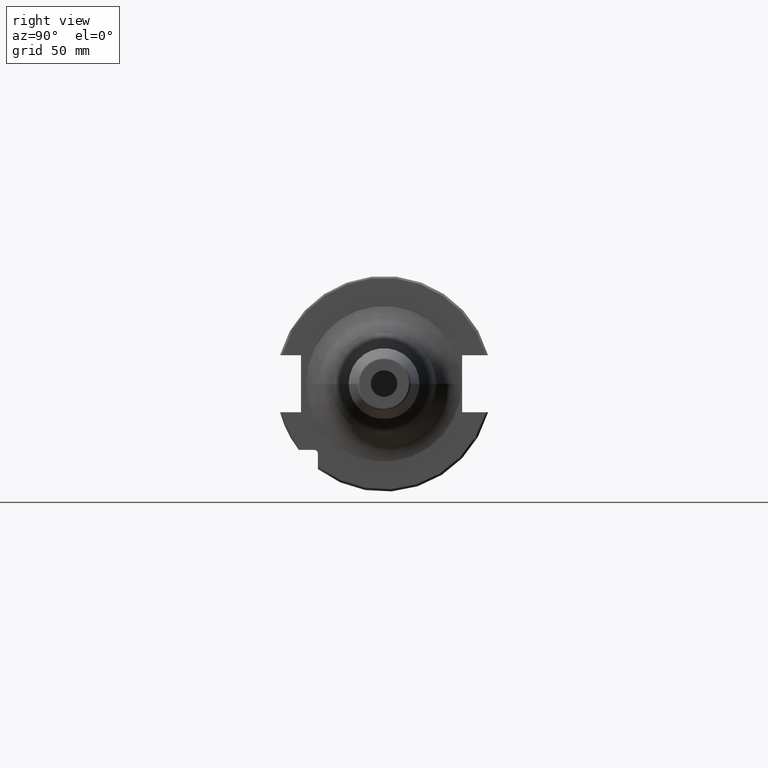
[diagram: clean part render]
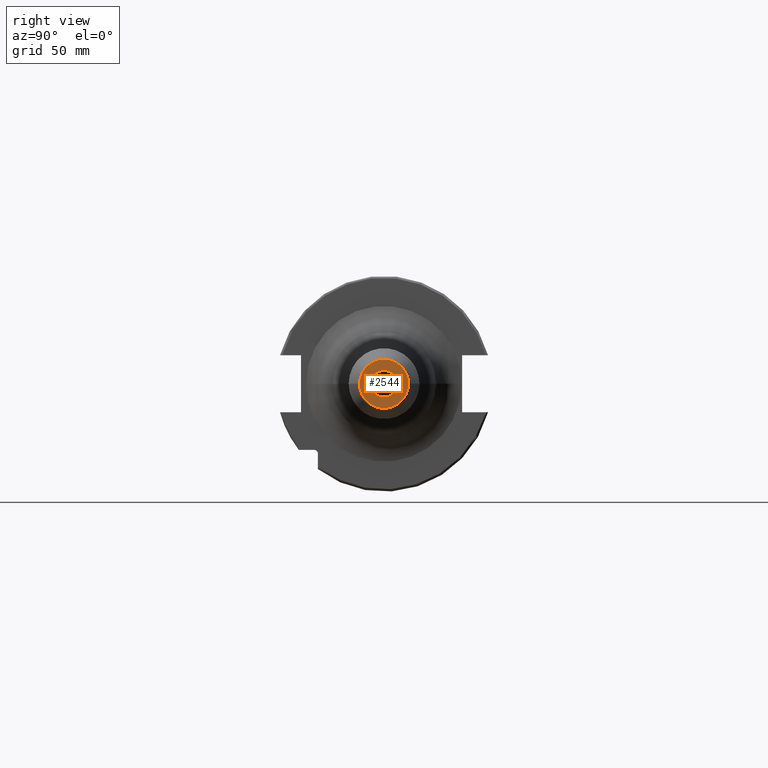
[diagram: same view with one face highlighted and labeled with its STEP entity id]
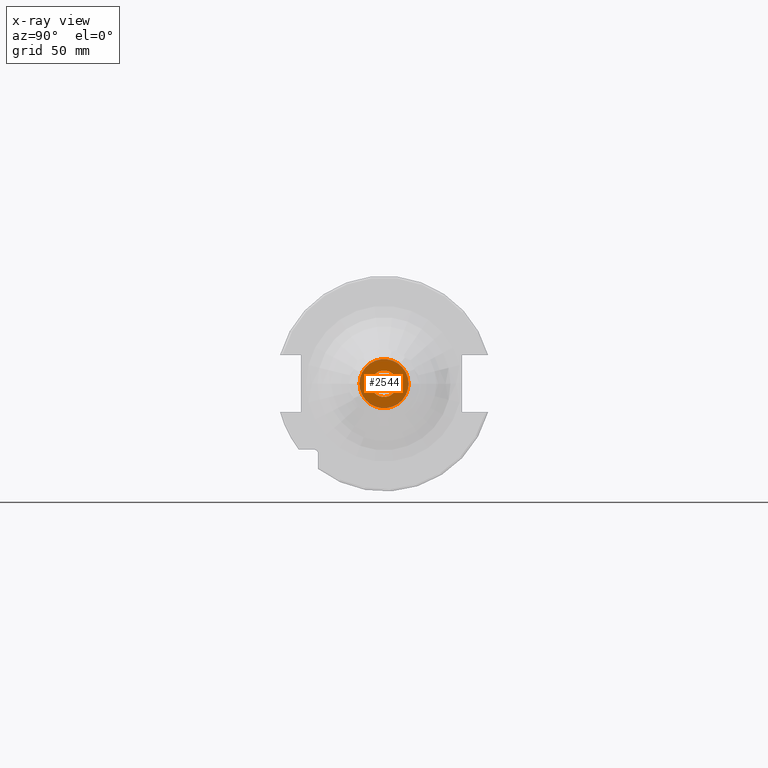
[diagram: x-ray of the same camera — body ghosted, the highlighted face saturated]
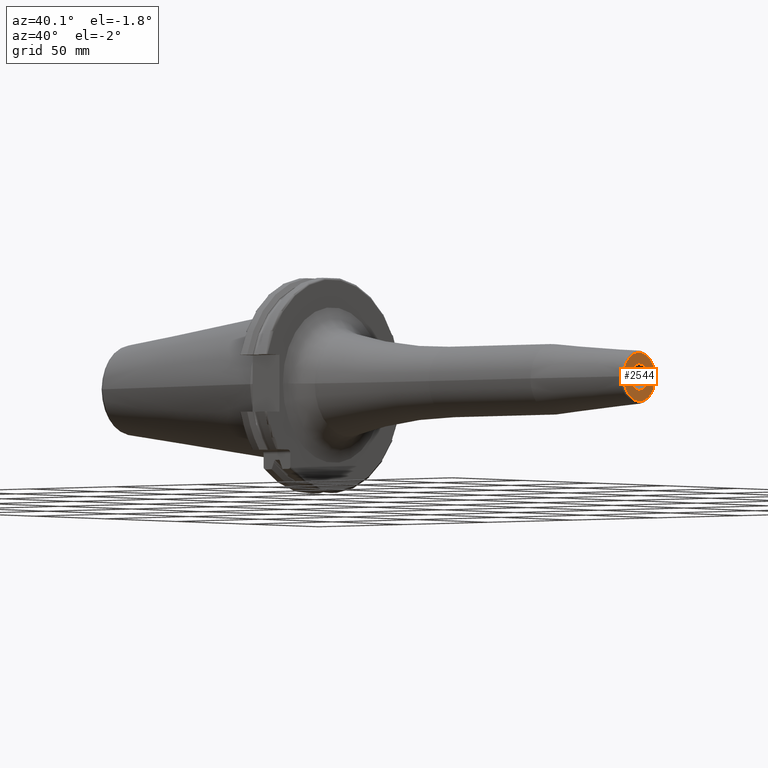
[diagram: same view with one face highlighted and labeled with its STEP entity id]
A machine part, right view. The second image highlights one B-rep face of the part: STEP entity #2544.
The next image is the same camera in x-ray: the body ghosted, the highlighted face saturated — about 0% of this face is hidden behind the body in this view.
A second angle (auxiliary view) of the same face is appended — the face is thin or edge-on in the first view.
In plain terms, the highlighted planar face has unit normal (1, 0, 0).
Its self-contained STEP definition (entity closure, byte-faithful):
#982=CARTESIAN_POINT('',(2.E2,0.E0,0.E0));
#983=DIRECTION('',(-1.E0,0.E0,0.E0));
#984=DIRECTION('',(0.E0,1.E0,0.E0));
#985=AXIS2_PLACEMENT_3D('',#982,#983,#984);
#987=CARTESIAN_POINT('',(2.E2,0.E0,0.E0));
#988=DIRECTION('',(-1.E0,0.E0,0.E0));
#989=DIRECTION('',(0.E0,-1.E0,0.E0));
#990=AXIS2_PLACEMENT_3D('',#987,#988,#989);
#992=CARTESIAN_POINT('',(2.E2,0.E0,0.E0));
#993=DIRECTION('',(-1.E0,0.E0,0.E0));
#994=DIRECTION('',(0.E0,-1.E0,0.E0));
#995=AXIS2_PLACEMENT_3D('',#992,#993,#994);
#997=CARTESIAN_POINT('',(2.E2,0.E0,0.E0));
#998=DIRECTION('',(-1.E0,0.E0,0.E0));
#999=DIRECTION('',(0.E0,1.E0,0.E0));
#1000=AXIS2_PLACEMENT_3D('',#997,#998,#999);
#1460=CARTESIAN_POINT('',(2.E2,1.107560950834E1,0.E0));
#1461=CARTESIAN_POINT('',(2.E2,-1.107560950834E1,0.E0));
#1462=VERTEX_POINT('',#1460);
#1463=VERTEX_POINT('',#1461);
#1468=CARTESIAN_POINT('',(2.E2,-6.E0,0.E0));
#1469=CARTESIAN_POINT('',(2.E2,6.E0,0.E0));
#1470=VERTEX_POINT('',#1468);
#1471=VERTEX_POINT('',#1469);
#2529=CARTESIAN_POINT('',(2.E2,0.E0,0.E0));
#2530=DIRECTION('',(1.E0,0.E0,0.E0));
#2531=DIRECTION('',(0.E0,-1.E0,0.E0));
#2532=AXIS2_PLACEMENT_3D('',#2529,#2530,#2531);
#2533=PLANE('',#2532);
#2534=ORIENTED_EDGE('',*,*,#2511,.T.);
#2535=ORIENTED_EDGE('',*,*,#2496,.T.);
#2536=EDGE_LOOP('',(#2534,#2535));
#2537=FACE_OUTER_BOUND('',#2536,.F.);
#2539=ORIENTED_EDGE('',*,*,#2538,.F.);
#2541=ORIENTED_EDGE('',*,*,#2540,.F.);
#2542=EDGE_LOOP('',(#2539,#2541));
#2543=FACE_BOUND('',#2542,.F.);
#2544=ADVANCED_FACE('',(#2537,#2543),#2533,.T.);
#986=CIRCLE('',#985,1.107560950834E1);
#991=CIRCLE('',#990,1.107560950834E1);
#996=CIRCLE('',#995,6.E0);
#1001=CIRCLE('',#1000,6.E0);
#2496=EDGE_CURVE('',#1463,#1462,#991,.T.);
#2511=EDGE_CURVE('',#1462,#1463,#986,.T.);
#2538=EDGE_CURVE('',#1470,#1471,#996,.T.);
#2540=EDGE_CURVE('',#1471,#1470,#1001,.T.);